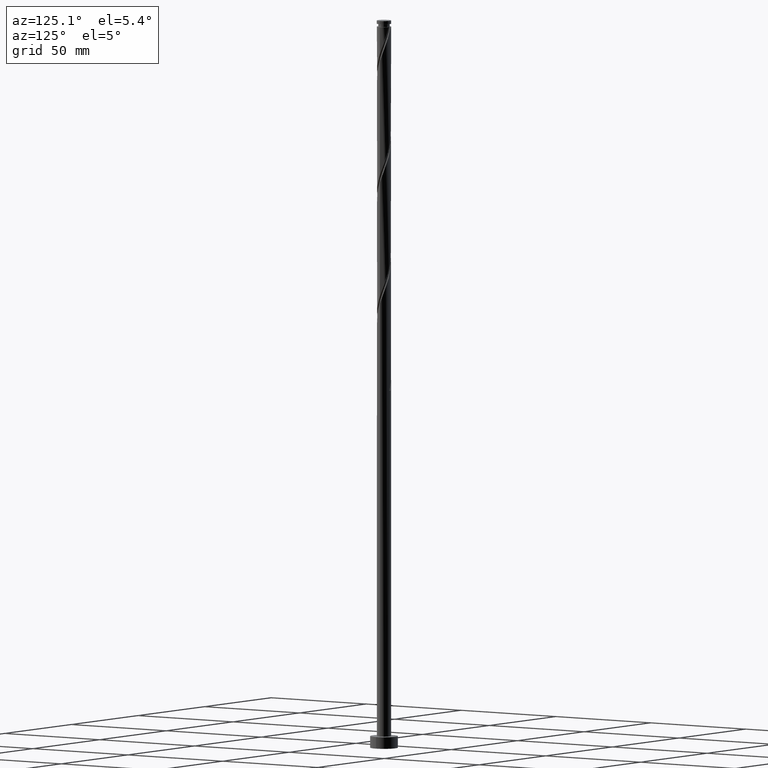
[diagram: clean part render]
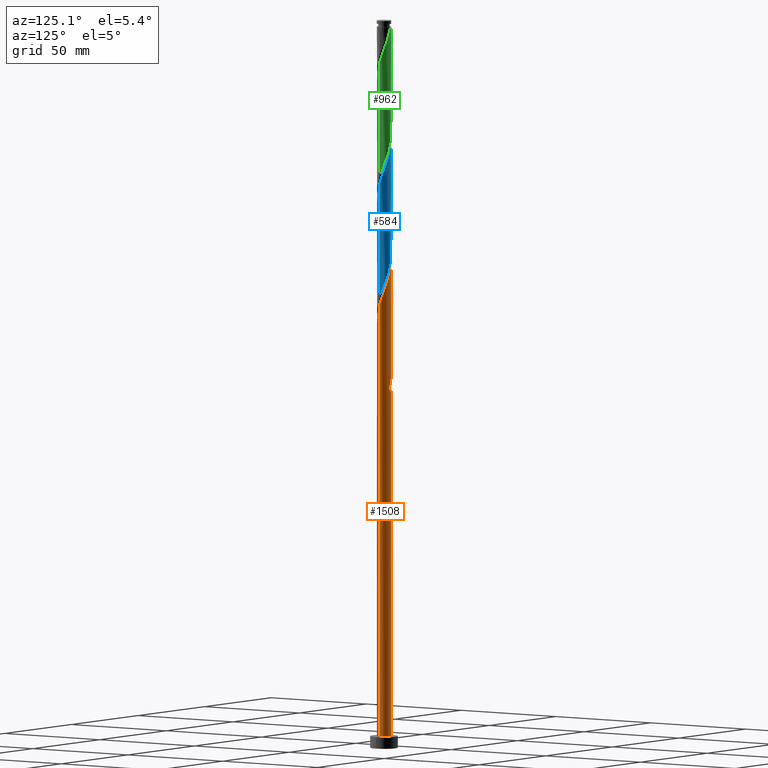
[diagram: same view with three faces highlighted in distinct colors, each labeled with its STEP entity id]
A machine part, auxiliary view with three faces highlighted in distinct colors.
Their STEP definitions:

[orange] entity #1508 — the highlighted cylindrical surface (edge-blend (fillet) strip) has radius 3.1 mm, axis along (-0, -0, -1).
#13 = CARTESIAN_POINT ( 'NONE',  ( -3.037999999999998924, 0.6168922110061071384, 167.9893247266693095 ) ) ;
#16 = AXIS2_PLACEMENT_3D ( 'NONE', #787, #523, #1714 ) ;
#17 = VERTEX_POINT ( 'NONE', #1017 ) ;
#27 = CARTESIAN_POINT ( 'NONE',  ( 2.258341651542058681, 2.152183489883522149, 198.9268247266692811 ) ) ;
#29 = DIRECTION ( 'NONE',  ( 0.000000000000000000, 0.000000000000000000, 1.000000000000000000 ) ) ;
#35 = CARTESIAN_POINT ( 'NONE',  ( 0.6168922110061080266, 3.037999999999998924, 154.8643247266693095 ) ) ;
#45 = EDGE_CURVE ( 'NONE', #1515, #721, #605, .T. ) ;
#55 = CARTESIAN_POINT ( 'NONE',  ( -3.100000000000000089, 0.000000000000000000, 5.000000000000000000 ) ) ;
#61 =( BOUNDED_CURVE ( )  B_SPLINE_CURVE ( 2, ( #865, #1749, #843, #1496, #1614, #1782, #145, #27, #1331, #706, #569, #1737, #1475, #439, #1465, #422, #414, #1605, #1324, #1917, #1164, #299, #993, #431, #1760, #289, #307, #1455, #156, #136, #1176 ),
 .UNSPECIFIED., .F., .T. ) 
 B_SPLINE_CURVE_WITH_KNOTS ( ( 3, 2, 2, 2, 2, 2, 2, 2, 2, 2, 2, 2, 2, 2, 2, 3 ),
 ( 0.1795303401299220003, 0.1875000000000000000, 0.1964285714285713969, 0.2053571428571429047, 0.2142857142857143016, 0.2232142857142856984, 0.2321428571428570953, 0.2410714285714286031, 0.2500000000000000000, 0.2589285714285713969, 0.2678571428571429047, 0.2767857142857143016, 0.2857142857142856984, 0.2946428571428570953, 0.3035714285714286031, 0.3045303401299219725 ),
 .UNSPECIFIED. ) 
 CURVE ( )  GEOMETRIC_REPRESENTATION_ITEM ( )  RATIONAL_B_SPLINE_CURVE ( ( 0.9079949616362184006, 0.9039886423360812273, 0.9090909090909482515, 0.9033747362666230130, 0.9090909090909482515, 0.9033747362666230130, 0.9090909090909482515, 0.9033747362666230130, 0.9090909090909482515, 0.9033747362666230130, 0.9090909090909482515, 0.9033747362666230130, 0.9090909090909482515, 0.9033747362666230130, 0.9090909090909482515, 0.9033747362666230130, 0.9090909090909482515, 0.9033747362666230130, 0.9090909090909482515, 0.9033747362666230130, 0.9090909090909482515, 0.9033747362666230130, 0.9090909090909482515, 0.9033747362666230130, 0.9090909090909482515, 0.9033747362666230130, 0.9090909090909482515, 0.9033747362666230130, 0.9090909090909482515, 0.9084770030214900371, 0.9079949616362184006 ) ) 
 REPRESENTATION_ITEM ( '' )  );
#62 = CARTESIAN_POINT ( 'NONE',  ( -0.4237781436733098483, 3.090697797288131099, 157.6768247266693095 ) ) ;
#82 = ORIENTED_EDGE ( 'NONE', *, *, #141, .T. ) ;
#90 = CARTESIAN_POINT ( 'NONE',  ( -0.07459316204186985932, 3.099102428151832900, 156.7393247266693095 ) ) ;
#136 = CARTESIAN_POINT ( 'NONE',  ( -3.100000000000003642, 0.03730198121581278919, 218.7144449605381453 ) ) ;
#141 = EDGE_CURVE ( 'NONE', #17, #1094, #628, .T. ) ;
#145 = CARTESIAN_POINT ( 'NONE',  ( 2.469483921543724758, 1.873939476407135318, 197.9893247266692526 ) ) ;
#156 = CARTESIAN_POINT ( 'NONE',  ( -3.099102428151837785, 0.07459316204187051158, 218.6143247266692811 ) ) ;
#198 = DIRECTION ( 'NONE',  ( -0.000000000000000000, -0.000000000000000000, -1.000000000000000000 ) ) ;
#212 = EDGE_CURVE ( 'NONE', #721, #1680, #1114, .T. ) ;
#221 = CARTESIAN_POINT ( 'NONE',  ( -3.090697797288135540, 0.4237781436733110141, 165.1768247266692811 ) ) ;
#238 = CARTESIAN_POINT ( 'NONE',  ( -3.100000000000003642, 0.03730198121581090182, 166.2144449605381453 ) ) ;
#257 = VECTOR ( 'NONE', #909, 1000.000000000000000 ) ;
#289 = CARTESIAN_POINT ( 'NONE',  ( -2.918908042374624756, 1.100898101268989571, 215.8018247266693379 ) ) ;
#299 = CARTESIAN_POINT ( 'NONE',  ( -2.152183489883523038, 2.258341651542058681, 212.0518247266693379 ) ) ;
#307 = CARTESIAN_POINT ( 'NONE',  ( -3.004802919831379704, 0.7623381224711502924, 216.7393247266692526 ) ) ;
#326 =( BOUNDED_CURVE ( )  B_SPLINE_CURVE ( 2, ( #1212, #1064, #603, #1520, #1512, #1222, #1381, #974, #505, #1255, #1587, #221, #1125, #238, #383 ),
 .UNSPECIFIED., .F., .T. ) 
 B_SPLINE_CURVE_WITH_KNOTS ( ( 3, 2, 2, 2, 2, 2, 2, 3 ),
 ( 0.000000000000000000, 0.008928571428571396851, 0.01785714285714290472, 0.02678571428571430504, 0.03571428571428569843, 0.04464285714285709528, 0.05357142857142861009, 0.05453034012992202112 ),
 .UNSPECIFIED. ) 
 CURVE ( )  GEOMETRIC_REPRESENTATION_ITEM ( )  RATIONAL_B_SPLINE_CURVE ( ( 0.9090909090909482515, 0.9033747362666230130, 0.9090909090909482515, 0.9033747362666230130, 0.9090909090909482515, 0.9033747362666230130, 0.9090909090909482515, 0.9033747362666230130, 0.9090909090909482515, 0.9033747362666230130, 0.9090909090909482515, 0.9033747362666230130, 0.9090909090909482515, 0.9084770030214900371, 0.9079949616362184006 ) ) 
 REPRESENTATION_ITEM ( '' )  );
#383 = CARTESIAN_POINT ( 'NONE',  ( -3.100000000000003642, -2.003785095264853602E-15, 166.3148076487632068 ) ) ;
#389 = CARTESIAN_POINT ( 'NONE',  ( -3.100000000000003642, -2.003785095264853602E-15, 218.8148076487632352 ) ) ;
#414 = CARTESIAN_POINT ( 'NONE',  ( -0.6168922110061069164, 3.038000000000003364, 207.3643247266693379 ) ) ;
#422 = CARTESIAN_POINT ( 'NONE',  ( -0.2745918195895690750, 3.107507059015540918, 206.4268247266692811 ) ) ;
#423 = VERTEX_POINT ( 'NONE', #1406 ) ;
#426 = ORIENTED_EDGE ( 'NONE', *, *, #212, .F. ) ;
#431 = CARTESIAN_POINT ( 'NONE',  ( -2.600752049917918640, 1.722814431116908684, 213.9268247266693095 ) ) ;
#439 = CARTESIAN_POINT ( 'NONE',  ( 0.4237781436733114582, 3.090697797288134652, 204.5518247266693663 ) ) ;
#452 = CARTESIAN_POINT ( 'NONE',  ( -3.100000000000000089, 0.000000000000000000, 315.0000000000000000 ) ) ;
#471 = EDGE_CURVE ( 'NONE', #827, #1094, #939, .T. ) ;
#500 = CARTESIAN_POINT ( 'NONE',  ( -2.824559566264924992, 1.277444032676696040, 166.1143247266692526 ) ) ;
#505 = CARTESIAN_POINT ( 'NONE',  ( -2.759830046146271254, 1.411856266192948794, 162.3643247266693095 ) ) ;
#523 = DIRECTION ( 'NONE',  ( -0.000000000000000000, -0.000000000000000000, -1.000000000000000000 ) ) ;
#569 = CARTESIAN_POINT ( 'NONE',  ( 1.411856266192949461, 2.759830046146270810, 201.7393247266692811 ) ) ;
#603 = CARTESIAN_POINT ( 'NONE',  ( -1.277444032676697150, 2.824559566264928545, 156.7393247266692526 ) ) ;
#605 = LINE ( 'NONE', #452, #765 ) ;
#628 = CIRCLE ( 'NONE', #1864, 3.100000000000000089 ) ;
#638 = ORIENTED_EDGE ( 'NONE', *, *, #1671, .T. ) ;
#646 = CARTESIAN_POINT ( 'NONE',  ( -1.100898101268986906, 2.918908042374620759, 159.5518247266693379 ) ) ;
#664 = DIRECTION ( 'NONE',  ( -1.000000000000000000, 0.000000000000000000, 0.000000000000000000 ) ) ;
#706 = CARTESIAN_POINT ( 'NONE',  ( 1.722814431116909129, 2.600752049917918196, 200.8018247266692811 ) ) ;
#708 = ORIENTED_EDGE ( 'NONE', *, *, #1357, .F. ) ;
#721 = VERTEX_POINT ( 'NONE', #1287 ) ;
#729 = CARTESIAN_POINT ( 'NONE',  ( -3.100000000000000533, 0.3115617227303544845, 168.8255707256117830 ) ) ;
#765 = VECTOR ( 'NONE', #1214, 1000.000000000000000 ) ;
#767 = CARTESIAN_POINT ( 'NONE',  ( 0.6168922110061080266, 3.037999999999998924, 154.8643247266693095 ) ) ;
#787 = CARTESIAN_POINT ( 'NONE',  ( 0.000000000000000000, 0.000000000000000000, 315.0000000000000000 ) ) ;
#789 = CARTESIAN_POINT ( 'NONE',  ( -2.680626191545387282, 1.595695462930747599, 165.1768247266693379 ) ) ;
#803 = DIRECTION ( 'NONE',  ( 0.000000000000000000, -0.000000000000000000, -1.000000000000000000 ) ) ;
#805 = CARTESIAN_POINT ( 'NONE',  ( -1.411856266192946130, 2.759830046146267257, 160.4893247266693095 ) ) ;
#827 = VERTEX_POINT ( 'NONE', #1655 ) ;
#831 = CARTESIAN_POINT ( 'NONE',  ( 3.100000000000004086, 1.559743332999457984E-15, 192.5648076487632068 ) ) ;
#843 = CARTESIAN_POINT ( 'NONE',  ( 3.038000000000003364, 0.6168922110061070274, 194.2393247266692811 ) ) ;
#865 = CARTESIAN_POINT ( 'NONE',  ( 3.100000000000004086, 1.559743332999458181E-15, 192.5648076487632068 ) ) ;
#905 = ORIENTED_EDGE ( 'NONE', *, *, #471, .F. ) ;
#909 = DIRECTION ( 'NONE',  ( -0.000000000000000000, -0.000000000000000000, -1.000000000000000000 ) ) ;
#939 = LINE ( 'NONE', #1694, #1770 ) ;
#974 = CARTESIAN_POINT ( 'NONE',  ( -2.600752049917918640, 1.722814431116908684, 161.4268247266693379 ) ) ;
#993 = CARTESIAN_POINT ( 'NONE',  ( -2.376467769900719951, 1.990578041329483794, 212.9893247266692242 ) ) ;
#1017 = CARTESIAN_POINT ( 'NONE',  ( 3.100000000000000089, 3.796405077356794918E-16, 5.000000000000000000 ) ) ;
#1029 = CARTESIAN_POINT ( 'NONE',  ( -3.099999999999999201, -5.869560437340105179E-15, 169.6638418045753838 ) ) ;
#1058 = CARTESIAN_POINT ( 'NONE',  ( 0.000000000000000000, 0.000000000000000000, 5.000000000000000000 ) ) ;
#1064 = CARTESIAN_POINT ( 'NONE',  ( -0.9591926024226453684, 2.968492940984465811, 155.8018247266693095 ) ) ;
#1074 = CARTESIAN_POINT ( 'NONE',  ( 3.100000000000000089, 3.796405077356794918E-16, 315.0000000000000000 ) ) ;
#1078 = CIRCLE ( 'NONE', #1316, 3.100000000000000089 ) ;
#1094 = VERTEX_POINT ( 'NONE', #55 ) ;
#1097 = CYLINDRICAL_SURFACE ( 'NONE', #16, 3.100000000000000089 ) ;
#1114 =( BOUNDED_CURVE ( )  B_SPLINE_CURVE ( 2, ( #1029, #729, #13, #1537, #500, #789, #1388, #1396, #1240, #1557, #805, #646, #1413, #62, #90, #1247, #767 ),
 .UNSPECIFIED., .F., .T. ) 
 B_SPLINE_CURVE_WITH_KNOTS ( ( 3, 2, 2, 2, 2, 2, 2, 2, 3 ),
 ( 0.9295303401299219725, 0.9375000000000000000, 0.9464285714285713969, 0.9553571428571429047, 0.9642857142857143016, 0.9732142857142856984, 0.9821428571428570953, 0.9910714285714286031, 1.000000000000000000 ),
 .UNSPECIFIED. ) 
 CURVE ( )  GEOMETRIC_REPRESENTATION_ITEM ( )  RATIONAL_B_SPLINE_CURVE ( ( 0.9079949616362122944, 0.9039886423360752321, 0.9090909090909421453, 0.9033747362666170178, 0.9090909090909421453, 0.9033747362666170178, 0.9090909090909421453, 0.9033747362666170178, 0.9090909090909421453, 0.9033747362666170178, 0.9090909090909421453, 0.9033747362666170178, 0.9090909090909421453, 0.9033747362666170178, 0.9090909090909421453, 0.9033747362666170178, 0.9090909090909421453 ) ) 
 REPRESENTATION_ITEM ( '' )  );
#1125 = CARTESIAN_POINT ( 'NONE',  ( -3.099102428151837785, 0.07459316204187051158, 166.1143247266692811 ) ) ;
#1164 = CARTESIAN_POINT ( 'NONE',  ( -1.873939476407135984, 2.469483921543723870, 211.1143247266692811 ) ) ;
#1176 = CARTESIAN_POINT ( 'NONE',  ( -3.100000000000003642, -2.003785095264853602E-15, 218.8148076487632352 ) ) ;
#1212 = CARTESIAN_POINT ( 'NONE',  ( -0.6168922110061069164, 3.038000000000003364, 154.8643247266693095 ) ) ;
#1214 = DIRECTION ( 'NONE',  ( -0.000000000000000000, -0.000000000000000000, -1.000000000000000000 ) ) ;
#1222 = CARTESIAN_POINT ( 'NONE',  ( -2.152183489883523038, 2.258341651542058681, 159.5518247266692811 ) ) ;
#1240 = CARTESIAN_POINT ( 'NONE',  ( -1.990578041329479575, 2.376467769900718174, 162.3643247266693095 ) ) ;
#1247 = CARTESIAN_POINT ( 'NONE',  ( 0.2745918195895699077, 3.107507059015536033, 155.8018247266693379 ) ) ;
#1255 = CARTESIAN_POINT ( 'NONE',  ( -2.918908042374624756, 1.100898101268989571, 163.3018247266693379 ) ) ;
#1287 = CARTESIAN_POINT ( 'NONE',  ( -3.099999999999999201, -5.869560437340105179E-15, 169.6638418045753838 ) ) ;
#1316 = AXIS2_PLACEMENT_3D ( 'NONE', #1850, #803, #664 ) ;
#1324 = CARTESIAN_POINT ( 'NONE',  ( -1.277444032676697150, 2.824559566264928545, 209.2393247266693095 ) ) ;
#1331 = CARTESIAN_POINT ( 'NONE',  ( 1.990578041329483794, 2.376467769900719951, 199.8643247266693095 ) ) ;
#1357 = EDGE_CURVE ( 'NONE', #1739, #1515, #61, .T. ) ;
#1381 = CARTESIAN_POINT ( 'NONE',  ( -2.376467769900719951, 1.990578041329483794, 160.4893247266693379 ) ) ;
#1388 = CARTESIAN_POINT ( 'NONE',  ( -2.469483921543719873, 1.873939476407133764, 164.2393247266693095 ) ) ;
#1396 = CARTESIAN_POINT ( 'NONE',  ( -2.258341651542054684, 2.152183489883519929, 163.3018247266693379 ) ) ;
#1406 = CARTESIAN_POINT ( 'NONE',  ( -0.6168922110061069164, 3.038000000000003364, 154.8643247266693095 ) ) ;
#1413 = CARTESIAN_POINT ( 'NONE',  ( -0.7623381224711484050, 3.004802919831375707, 158.6143247266692811 ) ) ;
#1432 = ORIENTED_EDGE ( 'NONE', *, *, #1530, .T. ) ;
#1446 = EDGE_CURVE ( 'NONE', #423, #827, #326, .T. ) ;
#1455 = CARTESIAN_POINT ( 'NONE',  ( -3.090697797288135540, 0.4237781436733110141, 217.6768247266693095 ) ) ;
#1465 = CARTESIAN_POINT ( 'NONE',  ( 0.07459316204187130261, 3.099102428151837785, 205.4893247266692811 ) ) ;
#1475 = CARTESIAN_POINT ( 'NONE',  ( 0.7623381224711507365, 3.004802919831379704, 203.6143247266692242 ) ) ;
#1496 = CARTESIAN_POINT ( 'NONE',  ( 2.968492940984465811, 0.9591926024226447023, 195.1768247266693095 ) ) ;
#1508 = ADVANCED_FACE ( 'NONE', ( #1866 ), #1097, .T. ) ;
#1512 = CARTESIAN_POINT ( 'NONE',  ( -1.873939476407135984, 2.469483921543723870, 158.6143247266692811 ) ) ;
#1515 = VERTEX_POINT ( 'NONE', #389 ) ;
#1520 = CARTESIAN_POINT ( 'NONE',  ( -1.595695462930749597, 2.680626191545391723, 157.6768247266692811 ) ) ;
#1530 = EDGE_CURVE ( 'NONE', #423, #1680, #1078, .T. ) ;
#1537 = CARTESIAN_POINT ( 'NONE',  ( -2.968492940984461370, 0.9591926024226445913, 167.0518247266693095 ) ) ;
#1557 = CARTESIAN_POINT ( 'NONE',  ( -1.722814431116905798, 2.600752049917915087, 161.4268247266693095 ) ) ;
#1587 = CARTESIAN_POINT ( 'NONE',  ( -3.004802919831379704, 0.7623381224711502924, 164.2393247266692811 ) ) ;
#1605 = CARTESIAN_POINT ( 'NONE',  ( -0.9591926024226453684, 2.968492940984465811, 208.3018247266693095 ) ) ;
#1614 = CARTESIAN_POINT ( 'NONE',  ( 2.824559566264928545, 1.277444032676696928, 196.1143247266692811 ) ) ;
#1636 = DIRECTION ( 'NONE',  ( 1.000000000000000000, 0.000000000000000000, 0.000000000000000000 ) ) ;
#1655 = CARTESIAN_POINT ( 'NONE',  ( -3.100000000000003642, -2.003785095264853602E-15, 166.3148076487632068 ) ) ;
#1671 = EDGE_CURVE ( 'NONE', #1739, #17, #1832, .T. ) ;
#1680 = VERTEX_POINT ( 'NONE', #35 ) ;
#1694 = CARTESIAN_POINT ( 'NONE',  ( -3.100000000000000089, 0.000000000000000000, 315.0000000000000000 ) ) ;
#1714 = DIRECTION ( 'NONE',  ( -1.000000000000000000, 0.000000000000000000, 0.000000000000000000 ) ) ;
#1737 = CARTESIAN_POINT ( 'NONE',  ( 1.100898101268990459, 2.918908042374624756, 202.6768247266693379 ) ) ;
#1739 = VERTEX_POINT ( 'NONE', #831 ) ;
#1749 = CARTESIAN_POINT ( 'NONE',  ( 3.100000000000004974, 0.3115617227303547621, 193.4030787277269212 ) ) ;
#1760 = CARTESIAN_POINT ( 'NONE',  ( -2.759830046146271254, 1.411856266192948794, 214.8643247266692526 ) ) ;
#1761 = EDGE_LOOP ( 'NONE', ( #708, #638, #82, #905, #1884, #1432, #426, #1872 ) ) ;
#1770 = VECTOR ( 'NONE', #198, 1000.000000000000000 ) ;
#1782 = CARTESIAN_POINT ( 'NONE',  ( 2.680626191545392167, 1.595695462930748931, 197.0518247266693095 ) ) ;
#1832 = LINE ( 'NONE', #1074, #257 ) ;
#1850 = CARTESIAN_POINT ( 'NONE',  ( 0.000000000000000000, 0.000000000000000000, 154.8643247266693379 ) ) ;
#1864 = AXIS2_PLACEMENT_3D ( 'NONE', #1058, #29, #1636 ) ;
#1866 = FACE_OUTER_BOUND ( 'NONE', #1761, .T. ) ;
#1872 = ORIENTED_EDGE ( 'NONE', *, *, #45, .F. ) ;
#1884 = ORIENTED_EDGE ( 'NONE', *, *, #1446, .F. ) ;
#1917 = CARTESIAN_POINT ( 'NONE',  ( -1.595695462930749597, 2.680626191545391723, 210.1768247266692811 ) ) ;

[blue] entity #584 — the highlighted cylindrical surface (edge-blend (fillet) strip) has radius 3.1 mm, axis along (-0, -0, -1).
#11 = AXIS2_PLACEMENT_3D ( 'NONE', #1079, #924, #485 ) ;
#24 = CARTESIAN_POINT ( 'NONE',  ( 2.824559566264928545, 1.277444032676696928, 248.6143247266692526 ) ) ;
#54 = CARTESIAN_POINT ( 'NONE',  ( 3.099102428151832900, 0.07459316204186934585, 196.1143247266692526 ) ) ;
#72 = CARTESIAN_POINT ( 'NONE',  ( 3.100000000000000089, 3.796405077356794918E-16, 315.0000000000000000 ) ) ;
#86 = CARTESIAN_POINT ( 'NONE',  ( 0.4237781436733114582, 3.090697797288134652, 257.0518247266693947 ) ) ;
#87 = CARTESIAN_POINT ( 'NONE',  ( 0.6168922110061076935, 3.037999999999998924, 207.3643247266692811 ) ) ;
#93 = ORIENTED_EDGE ( 'NONE', *, *, #295, .F. ) ;
#104 = CARTESIAN_POINT ( 'NONE',  ( -0.6168922110061069164, 3.038000000000003364, 259.8643247266693379 ) ) ;
#140 = CARTESIAN_POINT ( 'NONE',  ( -2.759830046146271254, 1.411856266192948794, 267.3643247266692242 ) ) ;
#194 = CARTESIAN_POINT ( 'NONE',  ( 2.680626191545392167, 1.595695462930748931, 249.5518247266693379 ) ) ;
#207 = CARTESIAN_POINT ( 'NONE',  ( -2.469483921543719873, 1.873939476407133764, 216.7393247266692811 ) ) ;
#231 = CARTESIAN_POINT ( 'NONE',  ( 1.411856266192949461, 2.759830046146270810, 254.2393247266692811 ) ) ;
#233 = DIRECTION ( 'NONE',  ( -0.000000000000000000, -0.000000000000000000, -1.000000000000000000 ) ) ;
#295 = EDGE_CURVE ( 'NONE', #783, #1638, #1091, .T. ) ;
#305 = CARTESIAN_POINT ( 'NONE',  ( 2.376467769900718174, 1.990578041329479131, 201.7393247266693095 ) ) ;
#330 = EDGE_CURVE ( 'NONE', #1855, #896, #1382, .T. ) ;
#335 = CARTESIAN_POINT ( 'NONE',  ( -2.968492940984461370, 0.9591926024226445913, 219.5518247266693095 ) ) ;
#346 = CARTESIAN_POINT ( 'NONE',  ( -3.100000000000000089, 0.000000000000000000, 315.0000000000000000 ) ) ;
#380 = CARTESIAN_POINT ( 'NONE',  ( 1.595695462930748487, 2.680626191545386838, 204.5518247266693379 ) ) ;
#399 = CARTESIAN_POINT ( 'NONE',  ( -2.600752049917918640, 1.722814431116908684, 266.4268247266692811 ) ) ;
#477 = CARTESIAN_POINT ( 'NONE',  ( -3.099999999999998312, 0.3115617227303629222, 221.3255707256116693 ) ) ;
#483 = CARTESIAN_POINT ( 'NONE',  ( -1.722814431116905798, 2.600752049917915087, 213.9268247266692526 ) ) ;
#485 = DIRECTION ( 'NONE',  ( -1.000000000000000000, 0.000000000000000000, 0.000000000000000000 ) ) ;
#491 = FACE_OUTER_BOUND ( 'NONE', #1775, .T. ) ;
#496 = CARTESIAN_POINT ( 'NONE',  ( -2.376467769900719951, 1.990578041329483794, 265.4893247266692242 ) ) ;
#541 = CARTESIAN_POINT ( 'NONE',  ( -3.004802919831379704, 0.7623381224711502924, 269.2393247266693379 ) ) ;
#576 = CARTESIAN_POINT ( 'NONE',  ( -3.100000000000003642, 2.787388205144964281E-15, 271.3148076487632352 ) ) ;
#584 = ADVANCED_FACE ( 'NONE', ( #491 ), #1827, .T. ) ;
#593 = CARTESIAN_POINT ( 'NONE',  ( 3.100000000000004086, 1.559743332999458181E-15, 245.0648076487632636 ) ) ;
#611 = CARTESIAN_POINT ( 'NONE',  ( -2.824559566264924992, 1.277444032676696040, 218.6143247266692526 ) ) ;
#623 = CARTESIAN_POINT ( 'NONE',  ( -1.873939476407135984, 2.469483921543723870, 263.6143247266692242 ) ) ;
#643 = CARTESIAN_POINT ( 'NONE',  ( 0.9591926024226450354, 2.968492940984461370, 206.4268247266693095 ) ) ;
#661 = CARTESIAN_POINT ( 'NONE',  ( -0.9591926024226453684, 2.968492940984465811, 260.8018247266692811 ) ) ;
#685 = CARTESIAN_POINT ( 'NONE',  ( 2.759830046146267701, 1.411856266192945908, 199.8643247266693095 ) ) ;
#746 = CARTESIAN_POINT ( 'NONE',  ( 3.099999999999999201, -3.097098005716648322E-15, 195.9138418045753838 ) ) ;
#783 = VERTEX_POINT ( 'NONE', #576 ) ;
#791 = VECTOR ( 'NONE', #233, 1000.000000000000000 ) ;
#801 = CARTESIAN_POINT ( 'NONE',  ( 0.2745918195895699077, 3.107507059015536033, 208.3018247266693095 ) ) ;
#818 = CARTESIAN_POINT ( 'NONE',  ( -3.099999999999999645, 1.140329097044587659E-14, 222.1638418045752701 ) ) ;
#858 = CARTESIAN_POINT ( 'NONE',  ( -3.100000000000003642, 2.787388205144964281E-15, 271.3148076487632352 ) ) ;
#884 = CARTESIAN_POINT ( 'NONE',  ( 2.600752049917915087, 1.722814431116905576, 200.8018247266693095 ) ) ;
#896 = VERTEX_POINT ( 'NONE', #1061 ) ;
#908 =( BOUNDED_CURVE ( )  B_SPLINE_CURVE ( 2, ( #593, #1518, #1510, #1351, #24, #194, #1203, #1796, #928, #944, #231, #1410, #1712, #86, #956, #1863, #104, #661, #1284, #1394, #623, #1245, #496, #399, #140, #1318, #541, #1147, #1449, #1134, #858 ),
 .UNSPECIFIED., .F., .T. ) 
 B_SPLINE_CURVE_WITH_KNOTS ( ( 3, 2, 2, 2, 2, 2, 2, 2, 2, 2, 2, 2, 2, 2, 2, 3 ),
 ( 0.4295303401299222501, 0.4375000000000000000, 0.4464285714285713969, 0.4553571428571429047, 0.4642857142857143016, 0.4732142857142856984, 0.4821428571428570953, 0.4910714285714286031, 0.5000000000000000000, 0.5089285714285713969, 0.5178571428571427937, 0.5267857142857143016, 0.5357142857142856984, 0.5446428571428572063, 0.5535714285714286031, 0.5545303401299223056 ),
 .UNSPECIFIED. ) 
 CURVE ( )  GEOMETRIC_REPRESENTATION_ITEM ( )  RATIONAL_B_SPLINE_CURVE ( ( 0.9079949616362181786, 0.9039886423360814494, 0.9090909090909482515, 0.9033747362666230130, 0.9090909090909482515, 0.9033747362666230130, 0.9090909090909482515, 0.9033747362666230130, 0.9090909090909482515, 0.9033747362666230130, 0.9090909090909482515, 0.9033747362666230130, 0.9090909090909482515, 0.9033747362666230130, 0.9090909090909482515, 0.9033747362666230130, 0.9090909090909482515, 0.9033747362666230130, 0.9090909090909482515, 0.9033747362666230130, 0.9090909090909482515, 0.9033747362666230130, 0.9090909090909482515, 0.9033747362666230130, 0.9090909090909482515, 0.9033747362666230130, 0.9090909090909482515, 0.9033747362666230130, 0.9090909090909482515, 0.9084770030214898151, 0.9079949616362180675 ) ) 
 REPRESENTATION_ITEM ( '' )  );
#910 = CARTESIAN_POINT ( 'NONE',  ( -2.258341651542054684, 2.152183489883519929, 215.8018247266693663 ) ) ;
#918 = CARTESIAN_POINT ( 'NONE',  ( 3.099999999999999201, 0.03730198121581598109, 196.0142044928005021 ) ) ;
#924 = DIRECTION ( 'NONE',  ( -0.000000000000000000, -0.000000000000000000, -1.000000000000000000 ) ) ;
#928 = CARTESIAN_POINT ( 'NONE',  ( 1.990578041329483794, 2.376467769900719951, 252.3643247266693095 ) ) ;
#944 = CARTESIAN_POINT ( 'NONE',  ( 1.722814431116909129, 2.600752049917918196, 253.3018247266692811 ) ) ;
#945 = CARTESIAN_POINT ( 'NONE',  ( -1.411856266192946130, 2.759830046146267257, 212.9893247266693379 ) ) ;
#956 = CARTESIAN_POINT ( 'NONE',  ( 0.07459316204187130261, 3.099102428151837785, 257.9893247266692811 ) ) ;
#1000 = CARTESIAN_POINT ( 'NONE',  ( 1.873939476407134430, 2.469483921543719873, 203.6143247266692242 ) ) ;
#1061 = CARTESIAN_POINT ( 'NONE',  ( 3.099999999999999201, -3.097098005716648322E-15, 195.9138418045753838 ) ) ;
#1063 = CARTESIAN_POINT ( 'NONE',  ( -3.037999999999998924, 0.6168922110061071384, 220.4893247266693095 ) ) ;
#1079 = CARTESIAN_POINT ( 'NONE',  ( 0.000000000000000000, 0.000000000000000000, 315.0000000000000000 ) ) ;
#1091 = LINE ( 'NONE', #346, #791 ) ;
#1134 = CARTESIAN_POINT ( 'NONE',  ( -3.100000000000004086, 0.03730198121579982734, 271.2144449605382306 ) ) ;
#1144 = ORIENTED_EDGE ( 'NONE', *, *, #330, .T. ) ;
#1147 = CARTESIAN_POINT ( 'NONE',  ( -3.090697797288135540, 0.4237781436733110141, 270.1768247266693379 ) ) ;
#1148 = CARTESIAN_POINT ( 'NONE',  ( 2.918908042374620759, 1.100898101268986462, 198.9268247266693095 ) ) ;
#1151 = EDGE_CURVE ( 'NONE', #1638, #896, #1922, .T. ) ;
#1203 = CARTESIAN_POINT ( 'NONE',  ( 2.469483921543724758, 1.873939476407135318, 250.4893247266692811 ) ) ;
#1229 = CARTESIAN_POINT ( 'NONE',  ( -2.680626191545387282, 1.595695462930747599, 217.6768247266693663 ) ) ;
#1245 = CARTESIAN_POINT ( 'NONE',  ( -2.152183489883523038, 2.258341651542058681, 264.5518247266692811 ) ) ;
#1256 = DIRECTION ( 'NONE',  ( -0.000000000000000000, -0.000000000000000000, -1.000000000000000000 ) ) ;
#1268 = ORIENTED_EDGE ( 'NONE', *, *, #1685, .F. ) ;
#1284 = CARTESIAN_POINT ( 'NONE',  ( -1.277444032676697150, 2.824559566264928545, 261.7393247266692811 ) ) ;
#1318 = CARTESIAN_POINT ( 'NONE',  ( -2.918908042374624756, 1.100898101268989571, 268.3018247266693379 ) ) ;
#1319 = CARTESIAN_POINT ( 'NONE',  ( 3.090697797288130655, 0.4237781436733090712, 197.0518247266692526 ) ) ;
#1336 = CARTESIAN_POINT ( 'NONE',  ( 2.152183489883521261, 2.258341651542053352, 202.6768247266693379 ) ) ;
#1351 = CARTESIAN_POINT ( 'NONE',  ( 2.968492940984465811, 0.9591926024226447023, 247.6768247266693095 ) ) ;
#1382 = LINE ( 'NONE', #72, #1903 ) ;
#1394 = CARTESIAN_POINT ( 'NONE',  ( -1.595695462930749597, 2.680626191545391723, 262.6768247266693379 ) ) ;
#1410 = CARTESIAN_POINT ( 'NONE',  ( 1.100898101268990459, 2.918908042374624756, 255.1768247266693663 ) ) ;
#1411 = CARTESIAN_POINT ( 'NONE',  ( -0.07459316204186985932, 3.099102428151832900, 209.2393247266692526 ) ) ;
#1449 = CARTESIAN_POINT ( 'NONE',  ( -3.099102428151837785, 0.07459316204187051158, 271.1143247266692811 ) ) ;
#1510 = CARTESIAN_POINT ( 'NONE',  ( 3.038000000000003364, 0.6168922110061070274, 246.7393247266693095 ) ) ;
#1518 = CARTESIAN_POINT ( 'NONE',  ( 3.100000000000002309, 0.3115617227303644210, 245.9030787277268360 ) ) ;
#1551 = CARTESIAN_POINT ( 'NONE',  ( -0.4237781436733098483, 3.090697797288131099, 210.1768247266693095 ) ) ;
#1584 = CARTESIAN_POINT ( 'NONE',  ( -0.7623381224711484050, 3.004802919831375707, 211.1143247266693095 ) ) ;
#1638 = VERTEX_POINT ( 'NONE', #818 ) ;
#1641 = CARTESIAN_POINT ( 'NONE',  ( 3.100000000000004086, 1.559743332999457984E-15, 245.0648076487632636 ) ) ;
#1672 = CARTESIAN_POINT ( 'NONE',  ( -1.990578041329479575, 2.376467769900718174, 214.8643247266693095 ) ) ;
#1685 = EDGE_CURVE ( 'NONE', #1855, #783, #908, .T. ) ;
#1701 = CARTESIAN_POINT ( 'NONE',  ( 1.277444032676696484, 2.824559566264924548, 205.4893247266692811 ) ) ;
#1709 = ORIENTED_EDGE ( 'NONE', *, *, #1151, .F. ) ;
#1712 = CARTESIAN_POINT ( 'NONE',  ( 0.7623381224711507365, 3.004802919831379704, 256.1143247266692811 ) ) ;
#1745 = CARTESIAN_POINT ( 'NONE',  ( 3.004802919831375707, 0.7623381224711479609, 197.9893247266693095 ) ) ;
#1775 = EDGE_LOOP ( 'NONE', ( #1268, #1144, #1709, #93 ) ) ;
#1796 = CARTESIAN_POINT ( 'NONE',  ( 2.258341651542058681, 2.152183489883522149, 251.4268247266692811 ) ) ;
#1815 = CARTESIAN_POINT ( 'NONE',  ( -3.099999999999999645, 1.140329097044587659E-14, 222.1638418045752417 ) ) ;
#1827 = CYLINDRICAL_SURFACE ( 'NONE', #11, 3.100000000000000089 ) ;
#1855 = VERTEX_POINT ( 'NONE', #1641 ) ;
#1863 = CARTESIAN_POINT ( 'NONE',  ( -0.2745918195895690750, 3.107507059015540918, 258.9268247266692242 ) ) ;
#1877 = CARTESIAN_POINT ( 'NONE',  ( -1.100898101268986906, 2.918908042374620759, 212.0518247266692811 ) ) ;
#1903 = VECTOR ( 'NONE', #1256, 1000.000000000000000 ) ;
#1922 =( BOUNDED_CURVE ( )  B_SPLINE_CURVE ( 2, ( #1815, #477, #1063, #335, #611, #1229, #207, #910, #1672, #483, #945, #1877, #1584, #1551, #1411, #801, #87, #643, #1701, #380, #1000, #1336, #305, #884, #685, #1148, #1745, #1319, #54, #918, #746 ),
 .UNSPECIFIED., .F., .T. ) 
 B_SPLINE_CURVE_WITH_KNOTS ( ( 3, 2, 2, 2, 2, 2, 2, 2, 2, 2, 2, 2, 2, 2, 2, 3 ),
 ( 0.6795303401299221946, 0.6875000000000000000, 0.6964285714285713969, 0.7053571428571429047, 0.7142857142857143016, 0.7232142857142856984, 0.7321428571428570953, 0.7410714285714286031, 0.7500000000000000000, 0.7589285714285713969, 0.7678571428571429047, 0.7767857142857143016, 0.7857142857142856984, 0.7946428571428570953, 0.8035714285714286031, 0.8045303401299218615 ),
 .UNSPECIFIED. ) 
 CURVE ( )  GEOMETRIC_REPRESENTATION_ITEM ( )  RATIONAL_B_SPLINE_CURVE ( ( 0.9079949616362121834, 0.9039886423360754542, 0.9090909090909421453, 0.9033747362666170178, 0.9090909090909421453, 0.9033747362666170178, 0.9090909090909421453, 0.9033747362666170178, 0.9090909090909421453, 0.9033747362666170178, 0.9090909090909421453, 0.9033747362666170178, 0.9090909090909421453, 0.9033747362666170178, 0.9090909090909421453, 0.9033747362666170178, 0.9090909090909421453, 0.9033747362666170178, 0.9090909090909421453, 0.9033747362666170178, 0.9090909090909421453, 0.9033747362666170178, 0.9090909090909421453, 0.9033747362666170178, 0.9090909090909421453, 0.9033747362666170178, 0.9090909090909421453, 0.9033747362666170178, 0.9090909090909421453, 0.9084770030214840419, 0.9079949616362124054 ) ) 
 REPRESENTATION_ITEM ( '' )  );

[green] entity #962 — the highlighted cylindrical surface (edge-blend (fillet) strip) has radius 3.1 mm, axis along (-0, -0, -1).
#48 = CARTESIAN_POINT ( 'NONE',  ( 2.824559566264928545, 1.277444032676696928, 301.1143247266693379 ) ) ;
#50 = CARTESIAN_POINT ( 'NONE',  ( 0.9591926024226450354, 2.968492940984461370, 258.9268247266692811 ) ) ;
#102 = CARTESIAN_POINT ( 'NONE',  ( -3.099999999999999645, -6.332259416507410814E-15, 274.6638418045753838 ) ) ;
#125 = EDGE_CURVE ( 'NONE', #769, #1699, #1794, .T. ) ;
#148 = CARTESIAN_POINT ( 'NONE',  ( -1.990578041329479575, 2.376467769900718174, 267.3643247266693379 ) ) ;
#159 = ORIENTED_EDGE ( 'NONE', *, *, #632, .F. ) ;
#175 = CARTESIAN_POINT ( 'NONE',  ( 1.990578041329483794, 2.376467769900719951, 304.8643247266691674 ) ) ;
#178 = CARTESIAN_POINT ( 'NONE',  ( -2.258341651542054684, 2.152183489883519929, 268.3018247266692811 ) ) ;
#184 = CARTESIAN_POINT ( 'NONE',  ( 2.600752049917915087, 1.722814431116905576, 253.3018247266692811 ) ) ;
#193 = CARTESIAN_POINT ( 'NONE',  ( -3.099999999999974332, 0.000000000000000000, 312.3643247266692811 ) ) ;
#249 = CARTESIAN_POINT ( 'NONE',  ( -3.099999999999999645, -6.332259416507410814E-15, 274.6638418045753838 ) ) ;
#291 = CARTESIAN_POINT ( 'NONE',  ( -0.2745918195895603042, 3.107507059015540918, 311.4268247266692811 ) ) ;
#300 = CARTESIAN_POINT ( 'NONE',  ( 2.968492940984465811, 0.9591926024226447023, 300.1768247266692811 ) ) ;
#316 = EDGE_CURVE ( 'NONE', #845, #1699, #1403, .T. ) ;
#320 = AXIS2_PLACEMENT_3D ( 'NONE', #1873, #1592, #952 ) ;
#331 = CARTESIAN_POINT ( 'NONE',  ( 1.595695462930748487, 2.680626191545386838, 257.0518247266693379 ) ) ;
#348 = CARTESIAN_POINT ( 'NONE',  ( 1.277444032676696484, 2.824559566264924548, 257.9893247266692242 ) ) ;
#354 = DIRECTION ( 'NONE',  ( -0.000000000000000000, -0.000000000000000000, -1.000000000000000000 ) ) ;
#357 = CARTESIAN_POINT ( 'NONE',  ( 2.759830046146267701, 1.411856266192945908, 252.3643247266692526 ) ) ;
#395 = CARTESIAN_POINT ( 'NONE',  ( -2.680626191545387282, 1.595695462930747599, 270.1768247266693379 ) ) ;
#434 = CARTESIAN_POINT ( 'NONE',  ( -1.100898101268986906, 2.918908042374620759, 264.5518247266693947 ) ) ;
#441 = CARTESIAN_POINT ( 'NONE',  ( 2.680626191545392167, 1.595695462930748931, 302.0518247266692242 ) ) ;
#467 = ORIENTED_EDGE ( 'NONE', *, *, #1506, .T. ) ;
#470 = CARTESIAN_POINT ( 'NONE',  ( 0.4237781436733114582, 3.090697797288134652, 309.5518247266693379 ) ) ;
#478 = CARTESIAN_POINT ( 'NONE',  ( 0.000000000000000000, 0.000000000000000000, 312.3643247266692811 ) ) ;
#517 = CARTESIAN_POINT ( 'NONE',  ( -3.037999999999998924, 0.6168922110061071384, 272.9893247266692811 ) ) ;
#564 = ORIENTED_EDGE ( 'NONE', *, *, #1263, .F. ) ;
#572 = ORIENTED_EDGE ( 'NONE', *, *, #125, .F. ) ;
#588 = CARTESIAN_POINT ( 'NONE',  ( 2.258341651542058681, 2.152183489883522149, 303.9268247266693379 ) ) ;
#608 = CARTESIAN_POINT ( 'NONE',  ( 3.099999999999999645, 0.03730198121580733522, 248.5142044928003600 ) ) ;
#620 = CARTESIAN_POINT ( 'NONE',  ( 2.376467769900718174, 1.990578041329479131, 254.2393247266693379 ) ) ;
#632 = EDGE_CURVE ( 'NONE', #845, #1315, #1678, .T. ) ;
#637 = DIRECTION ( 'NONE',  ( -1.000000000000000000, 0.000000000000000000, 0.000000000000000000 ) ) ;
#641 = CARTESIAN_POINT ( 'NONE',  ( -3.100000000000000977, 0.3115617227303456027, 273.8255707256117830 ) ) ;
#657 = AXIS2_PLACEMENT_3D ( 'NONE', #478, #1066, #637 ) ;
#674 = ORIENTED_EDGE ( 'NONE', *, *, #316, .T. ) ;
#710 = CARTESIAN_POINT ( 'NONE',  ( -1.722814431116905798, 2.600752049917915087, 266.4268247266692811 ) ) ;
#738 = CARTESIAN_POINT ( 'NONE',  ( 1.100898101268990459, 2.918908042374624756, 307.6768247266692242 ) ) ;
#758 = CARTESIAN_POINT ( 'NONE',  ( 1.722814431116909129, 2.600752049917918196, 305.8018247266691674 ) ) ;
#760 = CARTESIAN_POINT ( 'NONE',  ( 3.099102428151832900, 0.07459316204186934585, 248.6143247266692242 ) ) ;
#769 = VERTEX_POINT ( 'NONE', #1735 ) ;
#776 = CARTESIAN_POINT ( 'NONE',  ( 0.2745918195895699077, 3.107507059015536033, 260.8018247266692811 ) ) ;
#845 = VERTEX_POINT ( 'NONE', #193 ) ;
#876 = CARTESIAN_POINT ( 'NONE',  ( 3.038000000000003364, 0.6168922110061070274, 299.2393247266692811 ) ) ;
#933 = CARTESIAN_POINT ( 'NONE',  ( 3.004802919831375707, 0.7623381224711479609, 250.4893247266692242 ) ) ;
#951 = VECTOR ( 'NONE', #1438, 1000.000000000000000 ) ;
#952 = DIRECTION ( 'NONE',  ( -1.000000000000000000, 0.000000000000000000, 0.000000000000000000 ) ) ;
#962 = ADVANCED_FACE ( 'NONE', ( #1886 ), #981, .T. ) ;
#981 = CYLINDRICAL_SURFACE ( 'NONE', #320, 3.100000000000000089 ) ;
#1038 = CARTESIAN_POINT ( 'NONE',  ( 3.100000000000004086, 1.093312910451773224E-15, 297.5648076487631215 ) ) ;
#1066 = DIRECTION ( 'NONE',  ( -0.000000000000000000, -0.000000000000000000, -1.000000000000000000 ) ) ;
#1071 = CARTESIAN_POINT ( 'NONE',  ( -0.07459316204186985932, 3.099102428151832900, 261.7393247266692811 ) ) ;
#1093 = CARTESIAN_POINT ( 'NONE',  ( 0.6168922110061076935, 3.037999999999998924, 259.8643247266692811 ) ) ;
#1120 = CARTESIAN_POINT ( 'NONE',  ( -2.968492940984461370, 0.9591926024226445913, 272.0518247266693379 ) ) ;
#1168 = CARTESIAN_POINT ( 'NONE',  ( -1.411856266192946130, 2.759830046146267257, 265.4893247266692242 ) ) ;
#1217 = EDGE_LOOP ( 'NONE', ( #572, #467, #564, #159, #674 ) ) ;
#1225 = CARTESIAN_POINT ( 'NONE',  ( 2.918908042374620759, 1.100898101268986462, 251.4268247266693379 ) ) ;
#1248 = CARTESIAN_POINT ( 'NONE',  ( -0.4237781436733098483, 3.090697797288131099, 262.6768247266693379 ) ) ;
#1253 =( BOUNDED_CURVE ( )  B_SPLINE_CURVE ( 2, ( #102, #641, #517, #1120, #1721, #395, #1434, #178, #148, #710, #1168, #434, #1828, #1248, #1071, #776, #1093, #50, #348, #331, #1364, #1390, #620, #184, #357, #1225, #933, #1690, #760, #608, #1374 ),
 .UNSPECIFIED., .F., .T. ) 
 B_SPLINE_CURVE_WITH_KNOTS ( ( 3, 2, 2, 2, 2, 2, 2, 2, 2, 2, 2, 2, 2, 2, 2, 3 ),
 ( 0.4295303401299216950, 0.4375000000000000000, 0.4464285714285714524, 0.4553571428571428492, 0.4642857142857143016, 0.4732142857142856984, 0.4821428571428571508, 0.4910714285714285476, 0.5000000000000000000, 0.5089285714285713969, 0.5178571428571429047, 0.5267857142857143016, 0.5357142857142856984, 0.5446428571428570953, 0.5535714285714286031, 0.5545303401299220836 ),
 .UNSPECIFIED. ) 
 CURVE ( )  GEOMETRIC_REPRESENTATION_ITEM ( )  RATIONAL_B_SPLINE_CURVE ( ( 0.9079949616362125164, 0.9039886423360751211, 0.9090909090909421453, 0.9033747362666170178, 0.9090909090909421453, 0.9033747362666170178, 0.9090909090909421453, 0.9033747362666170178, 0.9090909090909421453, 0.9033747362666170178, 0.9090909090909421453, 0.9033747362666170178, 0.9090909090909421453, 0.9033747362666170178, 0.9090909090909421453, 0.9033747362666170178, 0.9090909090909421453, 0.9033747362666170178, 0.9090909090909421453, 0.9033747362666170178, 0.9090909090909421453, 0.9033747362666170178, 0.9090909090909421453, 0.9033747362666170178, 0.9090909090909421453, 0.9033747362666170178, 0.9090909090909421453, 0.9033747362666170178, 0.9090909090909421453, 0.9084770030214839309, 0.9079949616362121834 ) ) 
 REPRESENTATION_ITEM ( '' )  );
#1263 = EDGE_CURVE ( 'NONE', #1315, #1785, #1253, .T. ) ;
#1271 = CARTESIAN_POINT ( 'NONE',  ( 3.100000000000000089, 3.796405077356794918E-16, 315.0000000000000000 ) ) ;
#1315 = VERTEX_POINT ( 'NONE', #249 ) ;
#1352 = CARTESIAN_POINT ( 'NONE',  ( -0.6168922110061068054, 3.038000000000002920, 312.3643247266692811 ) ) ;
#1364 = CARTESIAN_POINT ( 'NONE',  ( 1.873939476407134430, 2.469483921543719873, 256.1143247266692242 ) ) ;
#1372 = CARTESIAN_POINT ( 'NONE',  ( 3.100000000000002309, 0.3115617227303622006, 298.4030787277268928 ) ) ;
#1374 = CARTESIAN_POINT ( 'NONE',  ( 3.099999999999999645, -3.097098005716648322E-15, 248.4138418045752985 ) ) ;
#1390 = CARTESIAN_POINT ( 'NONE',  ( 2.152183489883521261, 2.258341651542053352, 255.1768247266693095 ) ) ;
#1403 = CIRCLE ( 'NONE', #657, 3.099999999999974332 ) ;
#1419 = LINE ( 'NONE', #1271, #951 ) ;
#1434 = CARTESIAN_POINT ( 'NONE',  ( -2.469483921543719873, 1.873939476407133764, 269.2393247266693379 ) ) ;
#1438 = DIRECTION ( 'NONE',  ( -0.000000000000000000, -0.000000000000000000, -1.000000000000000000 ) ) ;
#1487 = CARTESIAN_POINT ( 'NONE',  ( 0.7623381224711507365, 3.004802919831379704, 308.6143247266692811 ) ) ;
#1506 = EDGE_CURVE ( 'NONE', #769, #1785, #1419, .T. ) ;
#1513 = CARTESIAN_POINT ( 'NONE',  ( 2.469483921543724758, 1.873939476407135318, 302.9893247266692242 ) ) ;
#1556 = VECTOR ( 'NONE', #354, 1000.000000000000000 ) ;
#1592 = DIRECTION ( 'NONE',  ( -0.000000000000000000, -0.000000000000000000, -1.000000000000000000 ) ) ;
#1609 = CARTESIAN_POINT ( 'NONE',  ( 3.099999999999999201, -3.097098005716648322E-15, 248.4138418045753269 ) ) ;
#1615 = CARTESIAN_POINT ( 'NONE',  ( 0.07459316204187130261, 3.099102428151837785, 310.4893247266693379 ) ) ;
#1674 = CARTESIAN_POINT ( 'NONE',  ( -3.100000000000000089, 0.000000000000000000, 315.0000000000000000 ) ) ;
#1678 = LINE ( 'NONE', #1674, #1556 ) ;
#1690 = CARTESIAN_POINT ( 'NONE',  ( 3.090697797288130655, 0.4237781436733090712, 249.5518247266693095 ) ) ;
#1699 = VERTEX_POINT ( 'NONE', #1911 ) ;
#1721 = CARTESIAN_POINT ( 'NONE',  ( -2.824559566264924992, 1.277444032676696040, 271.1143247266692811 ) ) ;
#1735 = CARTESIAN_POINT ( 'NONE',  ( 3.100000000000004086, 1.093312910451773224E-15, 297.5648076487631783 ) ) ;
#1785 = VERTEX_POINT ( 'NONE', #1609 ) ;
#1794 =( BOUNDED_CURVE ( )  B_SPLINE_CURVE ( 2, ( #1038, #1372, #876, #300, #48, #441, #1513, #588, #175, #758, #1808, #738, #1487, #470, #1615, #291, #1352 ),
 .UNSPECIFIED., .F., .T. ) 
 B_SPLINE_CURVE_WITH_KNOTS ( ( 3, 2, 2, 2, 2, 2, 2, 2, 3 ),
 ( 0.6795303401299221946, 0.6875000000000000000, 0.6964285714285713969, 0.7053571428571426827, 0.7142857142857141906, 0.7232142857142855874, 0.7321428571428570953, 0.7410714285714283811, 0.7499999999999997780 ),
 .UNSPECIFIED. ) 
 CURVE ( )  GEOMETRIC_REPRESENTATION_ITEM ( )  RATIONAL_B_SPLINE_CURVE ( ( 0.9079949616362181786, 0.9039886423360814494, 0.9090909090909482515, 0.9033747362666230130, 0.9090909090909482515, 0.9033747362666230130, 0.9090909090909482515, 0.9033747362666230130, 0.9090909090909482515, 0.9033747362666230130, 0.9090909090909482515, 0.9033747362666230130, 0.9090909090909482515, 0.9033747362666230130, 0.9090909090909482515, 0.9033747362666232350, 0.9090909090909480295 ) ) 
 REPRESENTATION_ITEM ( '' )  );
#1808 = CARTESIAN_POINT ( 'NONE',  ( 1.411856266192949461, 2.759830046146270810, 306.7393247266692811 ) ) ;
#1828 = CARTESIAN_POINT ( 'NONE',  ( -0.7623381224711484050, 3.004802919831375707, 263.6143247266692811 ) ) ;
#1873 = CARTESIAN_POINT ( 'NONE',  ( 0.000000000000000000, 0.000000000000000000, 315.0000000000000000 ) ) ;
#1886 = FACE_OUTER_BOUND ( 'NONE', #1217, .T. ) ;
#1911 = CARTESIAN_POINT ( 'NONE',  ( -0.6168922110061068054, 3.038000000000002920, 312.3643247266692811 ) ) ;